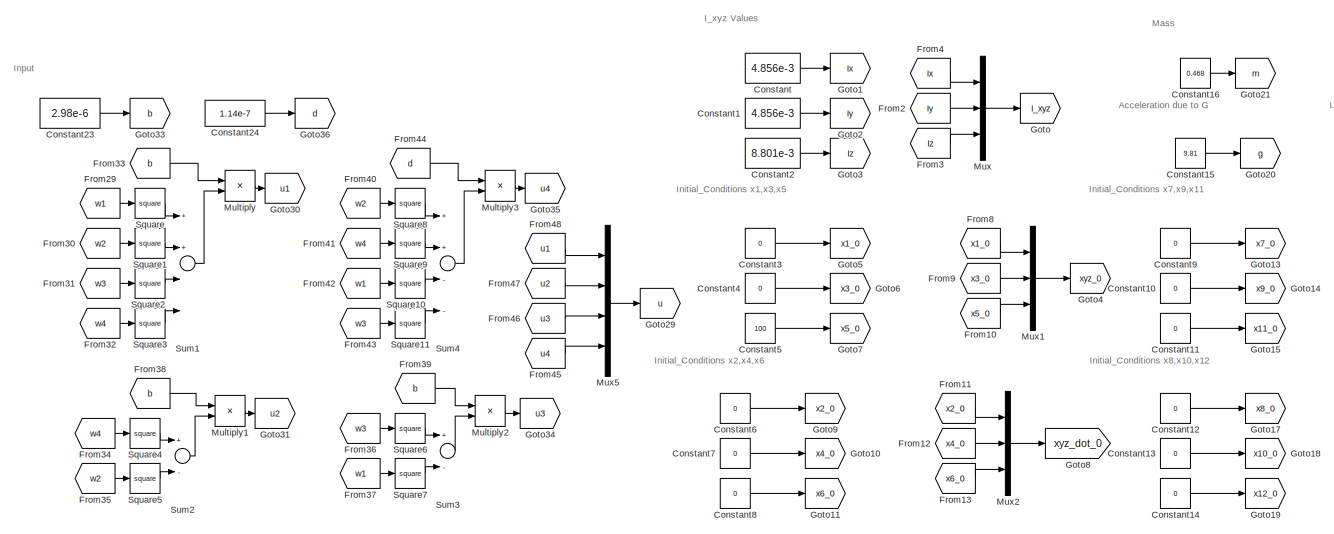
[diagram: root canvas - part 1/3, top center region]
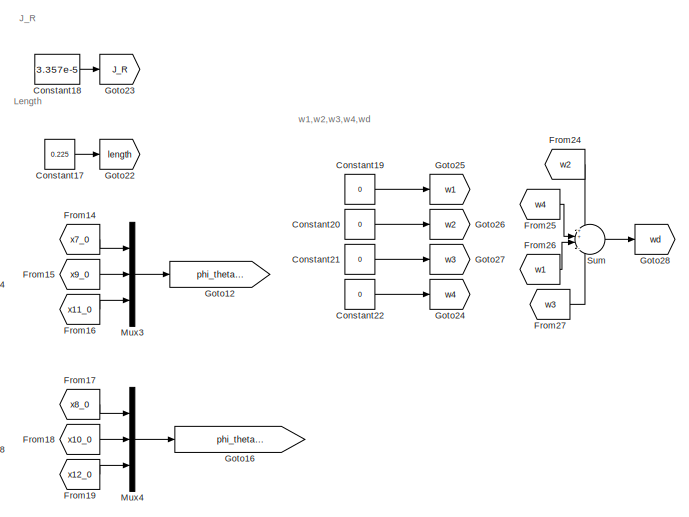
[diagram: root canvas - part 2/3, top right region]
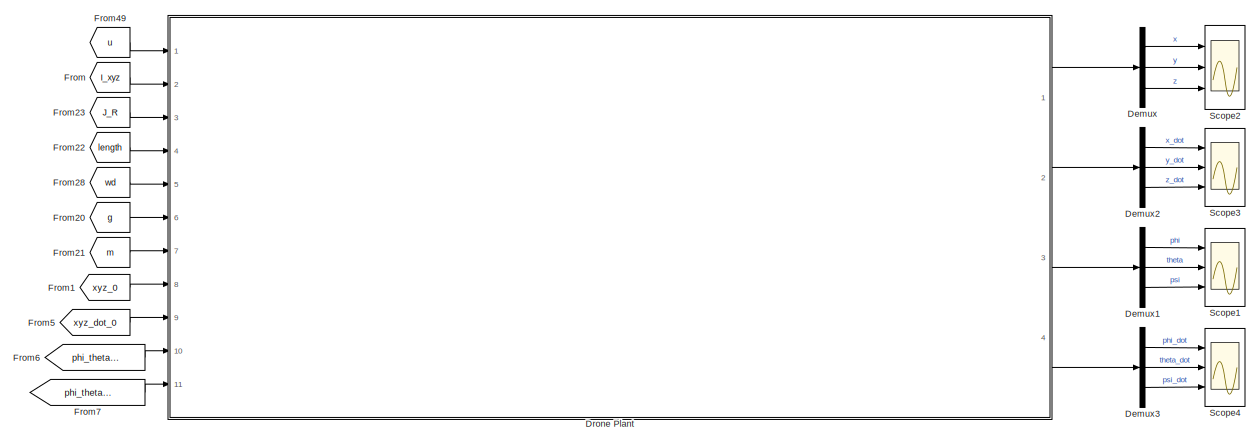
[diagram: root canvas - part 3/3, bottom center region]
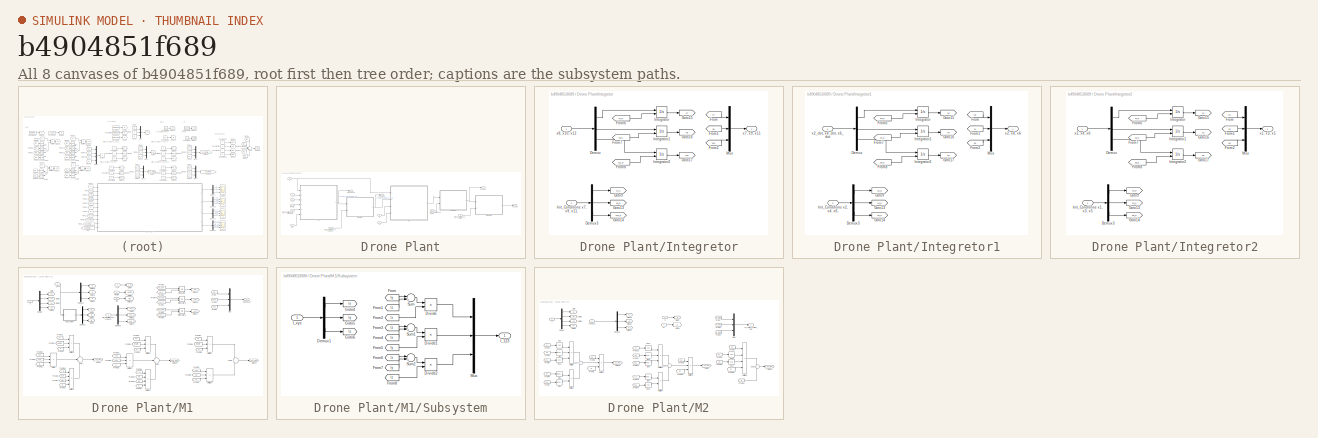
[diagram: thumbnail index - all 8 canvases of the model, root first then tree order]
MODEL slx_b4904851f689
KIND model
CONFIG AbsTol = auto
CONFIG EnableMultiTasking = off
CONFIG FixedStep = auto
CONFIG MaxStep = auto
CONFIG MinStep = auto
CONFIG RelTol = 1e-3
CONFIG SampleTimeConstraint = Unconstrained
CONFIG Solver = VariableStepAuto
CONFIG SolverName = VariableStepAuto
CONFIG StartTime = 0.0
CONFIG StopTime = 10.0
BLOCK [Constant] Constant
  Value = 4.856e-3
BLOCK [Constant] Constant1
  Value = 4.856e-3
BLOCK [Constant] Constant10
  Value = 0
BLOCK [Constant] Constant11
  Value = 0
BLOCK [Constant] Constant12
  Value = 0
BLOCK [Constant] Constant13
  Value = 0
BLOCK [Constant] Constant14
  Value = 0
BLOCK [Constant] Constant15
  Value = 9.81
BLOCK [Constant] Constant16
  Value = 0.468
BLOCK [Constant] Constant17
  Value = 0.225
BLOCK [Constant] Constant18
  Value = 3.357e-5
BLOCK [Constant] Constant19
  Value = 0
BLOCK [Constant] Constant2
  Value = 8.801e-3
BLOCK [Constant] Constant20
  Value = 0
BLOCK [Constant] Constant21
  Value = 0
BLOCK [Constant] Constant22
  Value = 0
BLOCK [Constant] Constant23
  Value = 2.98e-6
BLOCK [Constant] Constant24
  Value = 1.14e-7
BLOCK [Constant] Constant3
  Value = 0
BLOCK [Constant] Constant4
  Value = 0
BLOCK [Constant] Constant5
  Value = 100
BLOCK [Constant] Constant6
  Value = 0
BLOCK [Constant] Constant7
  Value = 0
BLOCK [Constant] Constant8
  Value = 0
BLOCK [Constant] Constant9
  Value = 0
BLOCK [Demux] Demux
  DisplayOption = bar
  Outputs = 3
  Ports = [1, 3]
BLOCK [Demux] Demux1
  DisplayOption = bar
  Outputs = 3
  Ports = [1, 3]
BLOCK [Demux] Demux2
  DisplayOption = bar
  Outputs = 3
  Ports = [1, 3]
BLOCK [Demux] Demux3
  DisplayOption = bar
  Outputs = 3
  Ports = [1, 3]
BLOCK [SubSystem] Drone Plant
  Ports = [11, 4]
  RequestExecContextInheritance = off
BLOCK [Inport] Drone Plant/I_xyz
  IconDisplay = Port number
  Port = 2
BLOCK [Inport] Drone Plant/Init_Conditions x1, x3, x5
  IconDisplay = Port number
  Port = 8
BLOCK [Inport] Drone Plant/Init_Conditions x2, x4, x6,
  IconDisplay = Port number
  Port = 9
BLOCK [Inport] Drone Plant/Init_Conditions x7, x9, x11,
  IconDisplay = Port number
  Port = 10
BLOCK [Inport] Drone Plant/Init_Conditions x8, x10, x12,
  IconDisplay = Port number
  Port = 11
BLOCK [SubSystem] Drone Plant/Integretor
  Ports = [2, 1]
  RequestExecContextInheritance = off
BLOCK [Demux] Drone Plant/Integretor/Demux
  DisplayOption = bar
  Outputs = 3
  Ports = [1, 3]
BLOCK [Demux] Drone Plant/Integretor/Demux3
  DisplayOption = bar
  Outputs = 3
  Ports = [1, 3]
BLOCK [From] Drone Plant/Integretor/From
  GotoTag = x7
BLOCK [From] Drone Plant/Integretor/From1
  GotoTag = x9
BLOCK [From] Drone Plant/Integretor/From2
  GotoTag = x11
BLOCK [From] Drone Plant/Integretor/From6
  GotoTag = x7_0
BLOCK [From] Drone Plant/Integretor/From7
  GotoTag = x9_0
BLOCK [From] Drone Plant/Integretor/From8
  GotoTag = x11_0
BLOCK [Goto] Drone Plant/Integretor/Goto13
  GotoTag = x9_0
BLOCK [Goto] Drone Plant/Integretor/Goto14
  GotoTag = x11_0
BLOCK [Goto] Drone Plant/Integretor/Goto15
  GotoTag = x7
BLOCK [Goto] Drone Plant/Integretor/Goto16
  GotoTag = x9
BLOCK [Goto] Drone Plant/Integretor/Goto17
  GotoTag = x11
BLOCK [Goto] Drone Plant/Integretor/Goto9
  GotoTag = x7_0
BLOCK [Inport] Drone Plant/Integretor/Init_Conditions x7, x9, x11,
  IconDisplay = Port number
  Port = 2
BLOCK [Integrator] Drone Plant/Integretor/Integrator
  InitialConditionSource = external
  Ports = [2, 1]
BLOCK [Integrator] Drone Plant/Integretor/Integrator1
  InitialConditionSource = external
  Ports = [2, 1]
BLOCK [Integrator] Drone Plant/Integretor/Integrator2
  InitialConditionSource = external
  Ports = [2, 1]
BLOCK [Mux] Drone Plant/Integretor/Mux
  DisplayOption = bar
  Inputs = 3
  Ports = [3, 1]
BLOCK [Outport] Drone Plant/Integretor/x7, x9, x11
  IconDisplay = Port number
BLOCK [Inport] Drone Plant/Integretor/x8, x10, x12
  IconDisplay = Port number
BLOCK [SubSystem] Drone Plant/Integretor1
  Ports = [2, 1]
  RequestExecContextInheritance = off
BLOCK [Demux] Drone Plant/Integretor1/Demux
  DisplayOption = bar
  Outputs = 3
  Ports = [1, 3]
BLOCK [Demux] Drone Plant/Integretor1/Demux3
  DisplayOption = bar
  Outputs = 3
  Ports = [1, 3]
BLOCK [From] Drone Plant/Integretor1/From
  GotoTag = x2
BLOCK [From] Drone Plant/Integretor1/From1
  GotoTag = x4
BLOCK [From] Drone Plant/Integretor1/From2
  GotoTag = x6
BLOCK [From] Drone Plant/Integretor1/From6
  GotoTag = x2_0
BLOCK [From] Drone Plant/Integretor1/From7
  GotoTag = x4_0
BLOCK [From] Drone Plant/Integretor1/From8
  GotoTag = x6_0
BLOCK [Goto] Drone Plant/Integretor1/Goto13
  GotoTag = x4_0
BLOCK [Goto] Drone Plant/Integretor1/Goto14
  GotoTag = x6_0
BLOCK [Goto] Drone Plant/Integretor1/Goto15
  GotoTag = x2
BLOCK [Goto] Drone Plant/Integretor1/Goto16
  GotoTag = x4
BLOCK [Goto] Drone Plant/Integretor1/Goto17
  GotoTag = x6
BLOCK [Goto] Drone Plant/Integretor1/Goto9
  GotoTag = x2_0
BLOCK [Inport] Drone Plant/Integretor1/Init_Conditions x2, x4, x6,
  IconDisplay = Port number
  Port = 2
BLOCK [Integrator] Drone Plant/Integretor1/Integrator
  InitialConditionSource = external
  Ports = [2, 1]
BLOCK [Integrator] Drone Plant/Integretor1/Integrator1
  InitialConditionSource = external
  Ports = [2, 1]
BLOCK [Integrator] Drone Plant/Integretor1/Integrator2
  InitialConditionSource = external
  Ports = [2, 1]
BLOCK [Mux] Drone Plant/Integretor1/Mux
  DisplayOption = bar
  Inputs = 3
  Ports = [3, 1]
BLOCK [Outport] Drone Plant/Integretor1/x2, x4, x6
  IconDisplay = Port number
BLOCK [Inport] Drone Plant/Integretor1/x2_dot, x4_dot, x6_dot
  IconDisplay = Port number
BLOCK [SubSystem] Drone Plant/Integretor2
  Ports = [2, 1]
  RequestExecContextInheritance = off
BLOCK [Demux] Drone Plant/Integretor2/Demux
  DisplayOption = bar
  Outputs = 3
  Ports = [1, 3]
BLOCK [Demux] Drone Plant/Integretor2/Demux3
  DisplayOption = bar
  Outputs = 3
  Ports = [1, 3]
BLOCK [From] Drone Plant/Integretor2/From
  GotoTag = x1
BLOCK [From] Drone Plant/Integretor2/From1
  GotoTag = x3
BLOCK [From] Drone Plant/Integretor2/From2
  GotoTag = x5
BLOCK [From] Drone Plant/Integretor2/From6
  GotoTag = x1_0
BLOCK [From] Drone Plant/Integretor2/From7
  GotoTag = x3_0
BLOCK [From] Drone Plant/Integretor2/From8
  GotoTag = x5_0
BLOCK [Goto] Drone Plant/Integretor2/Goto13
  GotoTag = x3_0
BLOCK [Goto] Drone Plant/Integretor2/Goto14
  GotoTag = x5_0
BLOCK [Goto] Drone Plant/Integretor2/Goto15
  GotoTag = x1
BLOCK [Goto] Drone Plant/Integretor2/Goto16
  GotoTag = x3
BLOCK [Goto] Drone Plant/Integretor2/Goto17
  GotoTag = x5
BLOCK [Goto] Drone Plant/Integretor2/Goto9
  GotoTag = x1_0
BLOCK [Inport] Drone Plant/Integretor2/Init_Conditions x1, x3, x5
  IconDisplay = Port number
  Port = 2
BLOCK [Integrator] Drone Plant/Integretor2/Integrator
  InitialConditionSource = external
  Ports = [2, 1]
BLOCK [Integrator] Drone Plant/Integretor2/Integrator1
  InitialConditionSource = external
  Ports = [2, 1]
BLOCK [Integrator] Drone Plant/Integretor2/Integrator2
  InitialConditionSource = external
  Ports = [2, 1]
BLOCK [Mux] Drone Plant/Integretor2/Mux
  DisplayOption = bar
  Inputs = 3
  Ports = [3, 1]
BLOCK [Outport] Drone Plant/Integretor2/x1, x3, x5
  IconDisplay = Port number
BLOCK [Inport] Drone Plant/Integretor2/x2, x4, x6
  IconDisplay = Port number
BLOCK [Inport] Drone Plant/J_R
  IconDisplay = Port number
  Port = 3
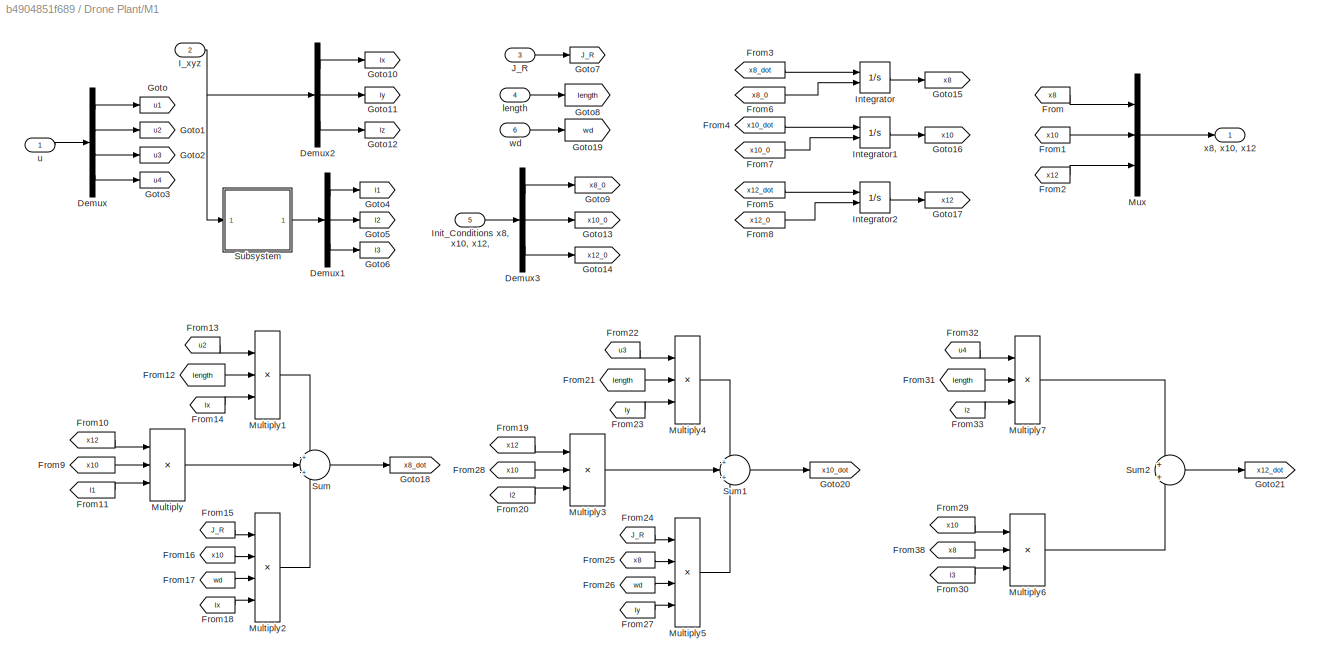
BLOCK [SubSystem] Drone Plant/M1
  Ports = [6, 1]
  RequestExecContextInheritance = off
BLOCK [Demux] Drone Plant/M1/Demux
  DisplayOption = bar
  Ports = [1, 4]
BLOCK [Demux] Drone Plant/M1/Demux1
  DisplayOption = bar
  Outputs = 3
  Ports = [1, 3]
BLOCK [Demux] Drone Plant/M1/Demux2
  DisplayOption = bar
  Outputs = 3
  Ports = [1, 3]
BLOCK [Demux] Drone Plant/M1/Demux3
  DisplayOption = bar
  Outputs = 3
  Ports = [1, 3]
BLOCK [From] Drone Plant/M1/From
  GotoTag = x8
BLOCK [From] Drone Plant/M1/From1
  GotoTag = x10
BLOCK [From] Drone Plant/M1/From10
  GotoTag = x12
BLOCK [From] Drone Plant/M1/From11
  GotoTag = I1
BLOCK [From] Drone Plant/M1/From12
  GotoTag = length
BLOCK [From] Drone Plant/M1/From13
  GotoTag = u2
BLOCK [From] Drone Plant/M1/From14
  GotoTag = Ix
BLOCK [From] Drone Plant/M1/From15
  GotoTag = J_R
BLOCK [From] Drone Plant/M1/From16
  GotoTag = x10
BLOCK [From] Drone Plant/M1/From17
  GotoTag = wd
BLOCK [From] Drone Plant/M1/From18
  GotoTag = Ix
BLOCK [From] Drone Plant/M1/From19
  GotoTag = x12
BLOCK [From] Drone Plant/M1/From2
  GotoTag = x12
BLOCK [From] Drone Plant/M1/From20
  GotoTag = I2
BLOCK [From] Drone Plant/M1/From21
  GotoTag = length
BLOCK [From] Drone Plant/M1/From22
  GotoTag = u3
BLOCK [From] Drone Plant/M1/From23
  GotoTag = Iy
BLOCK [From] Drone Plant/M1/From24
  GotoTag = J_R
BLOCK [From] Drone Plant/M1/From25
  GotoTag = x8
BLOCK [From] Drone Plant/M1/From26
  GotoTag = wd
BLOCK [From] Drone Plant/M1/From27
  GotoTag = Iy
BLOCK [From] Drone Plant/M1/From28
  GotoTag = x10
BLOCK [From] Drone Plant/M1/From29
  GotoTag = x10
BLOCK [From] Drone Plant/M1/From3
  GotoTag = x8_dot
BLOCK [From] Drone Plant/M1/From30
  GotoTag = I3
BLOCK [From] Drone Plant/M1/From31
  GotoTag = length
BLOCK [From] Drone Plant/M1/From32
  GotoTag = u4
BLOCK [From] Drone Plant/M1/From33
  GotoTag = Iz
BLOCK [From] Drone Plant/M1/From38
  GotoTag = x8
BLOCK [From] Drone Plant/M1/From4
  GotoTag = x10_dot
BLOCK [From] Drone Plant/M1/From5
  GotoTag = x12_dot
BLOCK [From] Drone Plant/M1/From6
  GotoTag = x8_0
BLOCK [From] Drone Plant/M1/From7
  GotoTag = x10_0
BLOCK [From] Drone Plant/M1/From8
  GotoTag = x12_0
BLOCK [From] Drone Plant/M1/From9
  GotoTag = x10
BLOCK [Goto] Drone Plant/M1/Goto
  GotoTag = u1
BLOCK [Goto] Drone Plant/M1/Goto1
  GotoTag = u2
BLOCK [Goto] Drone Plant/M1/Goto10
  GotoTag = Ix
BLOCK [Goto] Drone Plant/M1/Goto11
  GotoTag = Iy
BLOCK [Goto] Drone Plant/M1/Goto12
  GotoTag = Iz
BLOCK [Goto] Drone Plant/M1/Goto13
  GotoTag = x10_0
BLOCK [Goto] Drone Plant/M1/Goto14
  GotoTag = x12_0
BLOCK [Goto] Drone Plant/M1/Goto15
  GotoTag = x8
BLOCK [Goto] Drone Plant/M1/Goto16
  GotoTag = x10
BLOCK [Goto] Drone Plant/M1/Goto17
  GotoTag = x12
BLOCK [Goto] Drone Plant/M1/Goto18
  GotoTag = x8_dot
BLOCK [Goto] Drone Plant/M1/Goto19
  GotoTag = wd
BLOCK [Goto] Drone Plant/M1/Goto2
  GotoTag = u3
BLOCK [Goto] Drone Plant/M1/Goto20
  GotoTag = x10_dot
BLOCK [Goto] Drone Plant/M1/Goto21
  GotoTag = x12_dot
BLOCK [Goto] Drone Plant/M1/Goto3
  GotoTag = u4
BLOCK [Goto] Drone Plant/M1/Goto4
  GotoTag = I1
BLOCK [Goto] Drone Plant/M1/Goto5
  GotoTag = I2
BLOCK [Goto] Drone Plant/M1/Goto6
  GotoTag = I3
BLOCK [Goto] Drone Plant/M1/Goto7
  GotoTag = J_R
BLOCK [Goto] Drone Plant/M1/Goto8
  GotoTag = length
BLOCK [Goto] Drone Plant/M1/Goto9
  GotoTag = x8_0
BLOCK [Inport] Drone Plant/M1/I_xyz
  IconDisplay = Port number
  Port = 2
BLOCK [Inport] Drone Plant/M1/Init_Conditions x8, x10, x12,
  IconDisplay = Port number
  Port = 5
BLOCK [Integrator] Drone Plant/M1/Integrator
  InitialConditionSource = external
  Ports = [2, 1]
BLOCK [Integrator] Drone Plant/M1/Integrator1
  InitialConditionSource = external
  Ports = [2, 1]
BLOCK [Integrator] Drone Plant/M1/Integrator2
  InitialConditionSource = external
  Ports = [2, 1]
BLOCK [Inport] Drone Plant/M1/J_R
  IconDisplay = Port number
  Port = 3
BLOCK [Product] Drone Plant/M1/Multiply
  InputSameDT = off
  Inputs = 3
  OutDataTypeStr = Inherit: Inherit via internal rule
  Ports = [3, 1]
  RndMeth = Floor
  SaturateOnIntegerOverflow = off
BLOCK [Product] Drone Plant/M1/Multiply1
  InputSameDT = off
  Inputs = **/
  OutDataTypeStr = Inherit: Inherit via internal rule
  Ports = [3, 1]
  RndMeth = Floor
  SaturateOnIntegerOverflow = off
BLOCK [Product] Drone Plant/M1/Multiply2
  InputSameDT = off
  Inputs = ***/
  OutDataTypeStr = Inherit: Inherit via internal rule
  Ports = [4, 1]
  RndMeth = Floor
  SaturateOnIntegerOverflow = off
BLOCK [Product] Drone Plant/M1/Multiply3
  InputSameDT = off
  Inputs = 3
  OutDataTypeStr = Inherit: Inherit via internal rule
  Ports = [3, 1]
  RndMeth = Floor
  SaturateOnIntegerOverflow = off
BLOCK [Product] Drone Plant/M1/Multiply4
  InputSameDT = off
  Inputs = **/
  OutDataTypeStr = Inherit: Inherit via internal rule
  Ports = [3, 1]
  RndMeth = Floor
  SaturateOnIntegerOverflow = off
BLOCK [Product] Drone Plant/M1/Multiply5
  InputSameDT = off
  Inputs = ***/
  OutDataTypeStr = Inherit: Inherit via internal rule
  Ports = [4, 1]
  RndMeth = Floor
  SaturateOnIntegerOverflow = off
BLOCK [Product] Drone Plant/M1/Multiply6
  InputSameDT = off
  Inputs = 3
  OutDataTypeStr = Inherit: Inherit via internal rule
  Ports = [3, 1]
  RndMeth = Floor
  SaturateOnIntegerOverflow = off
BLOCK [Product] Drone Plant/M1/Multiply7
  InputSameDT = off
  Inputs = **/
  OutDataTypeStr = Inherit: Inherit via internal rule
  Ports = [3, 1]
  RndMeth = Floor
  SaturateOnIntegerOverflow = off
BLOCK [Mux] Drone Plant/M1/Mux
  DisplayOption = bar
  Inputs = 3
  Ports = [3, 1]
BLOCK [SubSystem] Drone Plant/M1/Subsystem
  Ports = [1, 1]
  RequestExecContextInheritance = off
BLOCK [Demux] Drone Plant/M1/Subsystem/Demux1
  DisplayOption = bar
  Outputs = 3
  Ports = [1, 3]
BLOCK [Product] Drone Plant/M1/Subsystem/Divide
  InputSameDT = off
  Inputs = */
  OutDataTypeStr = Inherit: Inherit via internal rule
  Ports = [2, 1]
  RndMeth = Floor
  SaturateOnIntegerOverflow = off
BLOCK [Product] Drone Plant/M1/Subsystem/Divide1
  InputSameDT = off
  Inputs = */
  OutDataTypeStr = Inherit: Inherit via internal rule
  Ports = [2, 1]
  RndMeth = Floor
  SaturateOnIntegerOverflow = off
BLOCK [Product] Drone Plant/M1/Subsystem/Divide2
  InputSameDT = off
  Inputs = */
  OutDataTypeStr = Inherit: Inherit via internal rule
  Ports = [2, 1]
  RndMeth = Floor
  SaturateOnIntegerOverflow = off
BLOCK [From] Drone Plant/M1/Subsystem/From
  GotoTag = Iy
BLOCK [From] Drone Plant/M1/Subsystem/From1
  GotoTag = Iz
BLOCK [From] Drone Plant/M1/Subsystem/From2
  GotoTag = Ix
BLOCK [From] Drone Plant/M1/Subsystem/From3
  GotoTag = Iz
BLOCK [From] Drone Plant/M1/Subsystem/From4
  GotoTag = Ix
BLOCK [From] Drone Plant/M1/Subsystem/From5
  GotoTag = Iy
BLOCK [From] Drone Plant/M1/Subsystem/From6
  GotoTag = Ix
BLOCK [From] Drone Plant/M1/Subsystem/From7
  GotoTag = Iy
BLOCK [From] Drone Plant/M1/Subsystem/From8
  GotoTag = Iz
BLOCK [Goto] Drone Plant/M1/Subsystem/Goto4
  GotoTag = Ix
BLOCK [Goto] Drone Plant/M1/Subsystem/Goto5
  GotoTag = Iy
BLOCK [Goto] Drone Plant/M1/Subsystem/Goto6
  GotoTag = Iz
BLOCK [Outport] Drone Plant/M1/Subsystem/I_123
  IconDisplay = Port number
BLOCK [Inport] Drone Plant/M1/Subsystem/I_xyz
  IconDisplay = Port number
BLOCK [Mux] Drone Plant/M1/Subsystem/Mux
  DisplayOption = bar
  Inputs = 3
  Ports = [3, 1]
BLOCK [Sum] Drone Plant/M1/Subsystem/Sum
  IconShape = round
  InputSameDT = off
  Inputs = |+-
  OutDataTypeStr = Inherit: Inherit via internal rule
  Ports = [2, 1]
  SaturateOnIntegerOverflow = off
BLOCK [Sum] Drone Plant/M1/Subsystem/Sum1
  IconShape = round
  InputSameDT = off
  Inputs = |+-
  OutDataTypeStr = Inherit: Inherit via internal rule
  Ports = [2, 1]
  SaturateOnIntegerOverflow = off
BLOCK [Sum] Drone Plant/M1/Subsystem/Sum2
  IconShape = round
  InputSameDT = off
  Inputs = |+-
  OutDataTypeStr = Inherit: Inherit via internal rule
  Ports = [2, 1]
  SaturateOnIntegerOverflow = off
BLOCK [Sum] Drone Plant/M1/Sum
  IconShape = round
  InputSameDT = off
  Inputs = +|+|-
  OutDataTypeStr = Inherit: Inherit via internal rule
  Ports = [3, 1]
  SaturateOnIntegerOverflow = off
BLOCK [Sum] Drone Plant/M1/Sum1
  IconShape = round
  InputSameDT = off
  Inputs = +|+|+
  OutDataTypeStr = Inherit: Inherit via internal rule
  Ports = [3, 1]
  SaturateOnIntegerOverflow = off
BLOCK [Sum] Drone Plant/M1/Sum2
  IconShape = round
  InputSameDT = off
  Inputs = +|+
  OutDataTypeStr = Inherit: Inherit via internal rule
  Ports = [2, 1]
  SaturateOnIntegerOverflow = off
BLOCK [Inport] Drone Plant/M1/length
  IconDisplay = Port number
  Port = 4
BLOCK [Inport] Drone Plant/M1/u
  IconDisplay = Port number
BLOCK [Inport] Drone Plant/M1/wd
  IconDisplay = Port number
  Port = 6
BLOCK [Outport] Drone Plant/M1/x8, x10, x12
  IconDisplay = Port number
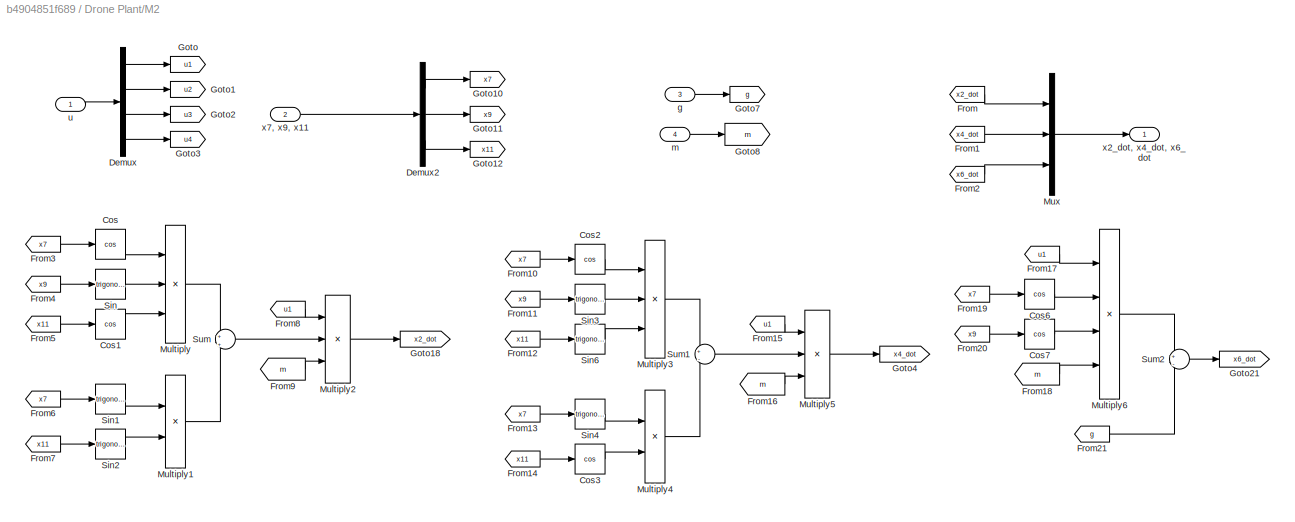
BLOCK [SubSystem] Drone Plant/M2
  Ports = [4, 1]
  RequestExecContextInheritance = off
BLOCK [Trigonometry] Drone Plant/M2/Cos
  Operator = cos
  Ports = [1, 1]
BLOCK [Trigonometry] Drone Plant/M2/Cos1
  Operator = cos
  Ports = [1, 1]
BLOCK [Trigonometry] Drone Plant/M2/Cos2
  Operator = cos
  Ports = [1, 1]
BLOCK [Trigonometry] Drone Plant/M2/Cos3
  Operator = cos
  Ports = [1, 1]
BLOCK [Trigonometry] Drone Plant/M2/Cos6
  Operator = cos
  Ports = [1, 1]
BLOCK [Trigonometry] Drone Plant/M2/Cos7
  Operator = cos
  Ports = [1, 1]
BLOCK [Demux] Drone Plant/M2/Demux
  DisplayOption = bar
  Ports = [1, 4]
BLOCK [Demux] Drone Plant/M2/Demux2
  DisplayOption = bar
  Outputs = 3
  Ports = [1, 3]
BLOCK [From] Drone Plant/M2/From
  GotoTag = x2_dot
BLOCK [From] Drone Plant/M2/From1
  GotoTag = x4_dot
BLOCK [From] Drone Plant/M2/From10
  GotoTag = x7
BLOCK [From] Drone Plant/M2/From11
  GotoTag = x9
BLOCK [From] Drone Plant/M2/From12
  GotoTag = x11
BLOCK [From] Drone Plant/M2/From13
  GotoTag = x7
BLOCK [From] Drone Plant/M2/From14
  GotoTag = x11
BLOCK [From] Drone Plant/M2/From15
  GotoTag = u1
BLOCK [From] Drone Plant/M2/From16
  GotoTag = m
BLOCK [From] Drone Plant/M2/From17
  GotoTag = u1
BLOCK [From] Drone Plant/M2/From18
  GotoTag = m
BLOCK [From] Drone Plant/M2/From19
  GotoTag = x7
BLOCK [From] Drone Plant/M2/From2
  GotoTag = x6_dot
BLOCK [From] Drone Plant/M2/From20
  GotoTag = x9
BLOCK [From] Drone Plant/M2/From21
  GotoTag = g
BLOCK [From] Drone Plant/M2/From3
  GotoTag = x7
BLOCK [From] Drone Plant/M2/From4
  GotoTag = x9
BLOCK [From] Drone Plant/M2/From5
  GotoTag = x11
BLOCK [From] Drone Plant/M2/From6
  GotoTag = x7
BLOCK [From] Drone Plant/M2/From7
  GotoTag = x11
BLOCK [From] Drone Plant/M2/From8
  GotoTag = u1
BLOCK [From] Drone Plant/M2/From9
  GotoTag = m
BLOCK [Goto] Drone Plant/M2/Goto
  GotoTag = u1
BLOCK [Goto] Drone Plant/M2/Goto1
  GotoTag = u2
BLOCK [Goto] Drone Plant/M2/Goto10
  GotoTag = x7
BLOCK [Goto] Drone Plant/M2/Goto11
  GotoTag = x9
BLOCK [Goto] Drone Plant/M2/Goto12
  GotoTag = x11
BLOCK [Goto] Drone Plant/M2/Goto18
  GotoTag = x2_dot
BLOCK [Goto] Drone Plant/M2/Goto2
  GotoTag = u3
BLOCK [Goto] Drone Plant/M2/Goto21
  GotoTag = x6_dot
BLOCK [Goto] Drone Plant/M2/Goto3
  GotoTag = u4
BLOCK [Goto] Drone Plant/M2/Goto4
  GotoTag = x4_dot
BLOCK [Goto] Drone Plant/M2/Goto7
  GotoTag = g
BLOCK [Goto] Drone Plant/M2/Goto8
  GotoTag = m
BLOCK [Product] Drone Plant/M2/Multiply
  InputSameDT = off
  Inputs = 3
  OutDataTypeStr = Inherit: Inherit via internal rule
  Ports = [3, 1]
  RndMeth = Floor
  SaturateOnIntegerOverflow = off
BLOCK [Product] Drone Plant/M2/Multiply1
  InputSameDT = off
  OutDataTypeStr = Inherit: Inherit via internal rule
  Ports = [2, 1]
  RndMeth = Floor
  SaturateOnIntegerOverflow = off
BLOCK [Product] Drone Plant/M2/Multiply2
  InputSameDT = off
  Inputs = **/
  OutDataTypeStr = Inherit: Inherit via internal rule
  Ports = [3, 1]
  RndMeth = Floor
  SaturateOnIntegerOverflow = off
BLOCK [Product] Drone Plant/M2/Multiply3
  InputSameDT = off
  Inputs = 3
  OutDataTypeStr = Inherit: Inherit via internal rule
  Ports = [3, 1]
  RndMeth = Floor
  SaturateOnIntegerOverflow = off
BLOCK [Product] Drone Plant/M2/Multiply4
  InputSameDT = off
  OutDataTypeStr = Inherit: Inherit via internal rule
  Ports = [2, 1]
  RndMeth = Floor
  SaturateOnIntegerOverflow = off
BLOCK [Product] Drone Plant/M2/Multiply5
  InputSameDT = off
  Inputs = **/
  OutDataTypeStr = Inherit: Inherit via internal rule
  Ports = [3, 1]
  RndMeth = Floor
  SaturateOnIntegerOverflow = off
BLOCK [Product] Drone Plant/M2/Multiply6
  InputSameDT = off
  Inputs = ***/
  OutDataTypeStr = Inherit: Inherit via internal rule
  Ports = [4, 1]
  RndMeth = Floor
  SaturateOnIntegerOverflow = off
BLOCK [Mux] Drone Plant/M2/Mux
  DisplayOption = bar
  Inputs = 3
  Ports = [3, 1]
BLOCK [Trigonometry] Drone Plant/M2/Sin
  Ports = [1, 1]
BLOCK [Trigonometry] Drone Plant/M2/Sin1
  Ports = [1, 1]
BLOCK [Trigonometry] Drone Plant/M2/Sin2
  Ports = [1, 1]
BLOCK [Trigonometry] Drone Plant/M2/Sin3
  Ports = [1, 1]
BLOCK [Trigonometry] Drone Plant/M2/Sin4
  Ports = [1, 1]
BLOCK [Trigonometry] Drone Plant/M2/Sin6
  Ports = [1, 1]
BLOCK [Sum] Drone Plant/M2/Sum
  IconShape = round
  InputSameDT = off
  Inputs = +|+
  OutDataTypeStr = Inherit: Inherit via internal rule
  Ports = [2, 1]
  SaturateOnIntegerOverflow = off
BLOCK [Sum] Drone Plant/M2/Sum1
  IconShape = round
  InputSameDT = off
  Inputs = +|-
  OutDataTypeStr = Inherit: Inherit via internal rule
  Ports = [2, 1]
  SaturateOnIntegerOverflow = off
BLOCK [Sum] Drone Plant/M2/Sum2
  IconShape = round
  InputSameDT = off
  Inputs = +|-
  OutDataTypeStr = Inherit: Inherit via internal rule
  Ports = [2, 1]
  SaturateOnIntegerOverflow = off
BLOCK [Inport] Drone Plant/M2/g
  IconDisplay = Port number
  Port = 3
BLOCK [Inport] Drone Plant/M2/m
  IconDisplay = Port number
  Port = 4
BLOCK [Inport] Drone Plant/M2/u
  IconDisplay = Port number
BLOCK [Outport] Drone Plant/M2/x2_dot, x4_dot, x6_dot
  IconDisplay = Port number
BLOCK [Inport] Drone Plant/M2/x7, x9, x11
  IconDisplay = Port number
  Port = 2
BLOCK [Inport] Drone Plant/g
  IconDisplay = Port number
  Port = 6
BLOCK [Inport] Drone Plant/length
  IconDisplay = Port number
  Port = 4
BLOCK [Inport] Drone Plant/m
  IconDisplay = Port number
  Port = 7
BLOCK [Inport] Drone Plant/u
  IconDisplay = Port number
BLOCK [Inport] Drone Plant/wd
  IconDisplay = Port number
  Port = 5
BLOCK [Outport] Drone Plant/x1, x3, x5
  IconDisplay = Port number
BLOCK [Outport] Drone Plant/x2, x4, x6
  IconDisplay = Port number
  Port = 2
BLOCK [Outport] Drone Plant/x7, x9, x11
  IconDisplay = Port number
  Port = 3
BLOCK [Outport] Drone Plant/x8, x10, x12
  IconDisplay = Port number
  Port = 4
BLOCK [From] From
  GotoTag = I_xyz
BLOCK [From] From1
  GotoTag = xyz_0
BLOCK [From] From10
  GotoTag = x5_0
BLOCK [From] From11
  GotoTag = x2_0
BLOCK [From] From12
  GotoTag = x4_0
BLOCK [From] From13
  GotoTag = x6_0
BLOCK [From] From14
  GotoTag = x7_0
BLOCK [From] From15
  GotoTag = x9_0
BLOCK [From] From16
  GotoTag = x11_0
BLOCK [From] From17
  GotoTag = x8_0
BLOCK [From] From18
  GotoTag = x10_0
BLOCK [From] From19
  GotoTag = x12_0
BLOCK [From] From2
  GotoTag = Iy
BLOCK [From] From20
  GotoTag = g
BLOCK [From] From21
  GotoTag = m
BLOCK [From] From22
  GotoTag = length
BLOCK [From] From23
  GotoTag = J_R
BLOCK [From] From24
  GotoTag = w2
BLOCK [From] From25
  GotoTag = w4
BLOCK [From] From26
  GotoTag = w1
BLOCK [From] From27
  GotoTag = w3
BLOCK [From] From28
  GotoTag = wd
BLOCK [From] From29
  GotoTag = w1
BLOCK [From] From3
  GotoTag = Iz
BLOCK [From] From30
  GotoTag = w2
BLOCK [From] From31
  GotoTag = w3
BLOCK [From] From32
  GotoTag = w4
BLOCK [From] From33
  GotoTag = b
BLOCK [From] From34
  GotoTag = w4
BLOCK [From] From35
  GotoTag = w2
BLOCK [From] From36
  GotoTag = w3
BLOCK [From] From37
  GotoTag = w1
BLOCK [From] From38
  GotoTag = b
BLOCK [From] From39
  GotoTag = b
BLOCK [From] From4
  GotoTag = Ix
BLOCK [From] From40
  GotoTag = w2
BLOCK [From] From41
  GotoTag = w4
BLOCK [From] From42
  GotoTag = w1
BLOCK [From] From43
  GotoTag = w3
BLOCK [From] From44
  GotoTag = d
BLOCK [From] From45
  GotoTag = u4
BLOCK [From] From46
  GotoTag = u3
BLOCK [From] From47
  GotoTag = u2
BLOCK [From] From48
  GotoTag = u1
BLOCK [From] From49
  GotoTag = u
BLOCK [From] From5
  GotoTag = xyz_dot_0
BLOCK [From] From6
  GotoTag = phi_theta_psi_0
BLOCK [From] From7
  GotoTag = phi_theta_psi_dot_0
BLOCK [From] From8
  GotoTag = x1_0
BLOCK [From] From9
  GotoTag = x3_0
BLOCK [Goto] Goto
  GotoTag = I_xyz
BLOCK [Goto] Goto1
  GotoTag = Ix
BLOCK [Goto] Goto10
  GotoTag = x4_0
BLOCK [Goto] Goto11
  GotoTag = x6_0
BLOCK [Goto] Goto12
  GotoTag = phi_theta_psi_0
BLOCK [Goto] Goto13
  GotoTag = x7_0
BLOCK [Goto] Goto14
  GotoTag = x9_0
BLOCK [Goto] Goto15
  GotoTag = x11_0
BLOCK [Goto] Goto16
  GotoTag = phi_theta_psi_dot_0
BLOCK [Goto] Goto17
  GotoTag = x8_0
BLOCK [Goto] Goto18
  GotoTag = x10_0
BLOCK [Goto] Goto19
  GotoTag = x12_0
BLOCK [Goto] Goto2
  GotoTag = Iy
BLOCK [Goto] Goto20
  GotoTag = g
BLOCK [Goto] Goto21
  GotoTag = m
BLOCK [Goto] Goto22
  GotoTag = length
BLOCK [Goto] Goto23
  GotoTag = J_R
BLOCK [Goto] Goto24
  GotoTag = w4
BLOCK [Goto] Goto25
  GotoTag = w1
BLOCK [Goto] Goto26
  GotoTag = w2
BLOCK [Goto] Goto27
  GotoTag = w3
BLOCK [Goto] Goto28
  GotoTag = wd
BLOCK [Goto] Goto29
  GotoTag = u
BLOCK [Goto] Goto3
  GotoTag = Iz
BLOCK [Goto] Goto30
  GotoTag = u1
BLOCK [Goto] Goto31
  GotoTag = u2
BLOCK [Goto] Goto33
  GotoTag = b
BLOCK [Goto] Goto34
  GotoTag = u3
BLOCK [Goto] Goto35
  GotoTag = u4
BLOCK [Goto] Goto36
  GotoTag = d
BLOCK [Goto] Goto4
  GotoTag = xyz_0
BLOCK [Goto] Goto5
  GotoTag = x1_0
BLOCK [Goto] Goto6
  GotoTag = x3_0
BLOCK [Goto] Goto7
  GotoTag = x5_0
BLOCK [Goto] Goto8
  GotoTag = xyz_dot_0
BLOCK [Goto] Goto9
  GotoTag = x2_0
BLOCK [Product] Multiply
  InputSameDT = off
  OutDataTypeStr = Inherit: Inherit via internal rule
  Ports = [2, 1]
  RndMeth = Floor
  SaturateOnIntegerOverflow = off
BLOCK [Product] Multiply1
  InputSameDT = off
  OutDataTypeStr = Inherit: Inherit via internal rule
  Ports = [2, 1]
  RndMeth = Floor
  SaturateOnIntegerOverflow = off
BLOCK [Product] Multiply2
  InputSameDT = off
  OutDataTypeStr = Inherit: Inherit via internal rule
  Ports = [2, 1]
  RndMeth = Floor
  SaturateOnIntegerOverflow = off
BLOCK [Product] Multiply3
  InputSameDT = off
  OutDataTypeStr = Inherit: Inherit via internal rule
  Ports = [2, 1]
  RndMeth = Floor
  SaturateOnIntegerOverflow = off
BLOCK [Mux] Mux
  DisplayOption = bar
  Inputs = 3
  Ports = [3, 1]
BLOCK [Mux] Mux1
  DisplayOption = bar
  Inputs = 3
  Ports = [3, 1]
BLOCK [Mux] Mux2
  DisplayOption = bar
  Inputs = 3
  Ports = [3, 1]
BLOCK [Mux] Mux3
  DisplayOption = bar
  Inputs = 3
  Ports = [3, 1]
BLOCK [Mux] Mux4
  DisplayOption = bar
  Inputs = 3
  Ports = [3, 1]
BLOCK [Mux] Mux5
  DisplayOption = bar
  Ports = [4, 1]
BLOCK [Scope] Scope1
  Floating = off
  NumInputPorts = 3
  Ports = [3]
  ScopeSpecificationString = Simulink.scopes.TimeScopeBlockCfg('CurrentConfiguration', extmgr.ConfigurationSet(extmgr.Configuration('Core','General UI',true,'FigureColor',[1 1 1]),extmgr.Configuration('Core','Source UI',true),extmgr.Configuration('Sources','WiredSimulink',true,'DataLoggingVariableName','ScopeData1'),extmgr.Configuration('Visuals','Time Domain',true,'SerializedDisplays',{struct('MinYLimReal','-2985.56142','Max...<+3096ch>
BLOCK [Scope] Scope2
  Floating = off
  NumInputPorts = 3
  Ports = [3]
  ScopeSpecificationString = Simulink.scopes.TimeScopeBlockCfg('CurrentConfiguration', extmgr.ConfigurationSet(extmgr.Configuration('Core','General UI',true,'FigureColor',[1 1 1]),extmgr.Configuration('Core','Source UI',true),extmgr.Configuration('Sources','WiredSimulink',true,'DataLoggingVariableName','ScopeData2'),extmgr.Configuration('Visuals','Time Domain',true,'SerializedDisplays',{struct('MinYLimReal','-1.00000','MaxYLi...<+3075ch>
BLOCK [Scope] Scope3
  Floating = off
  NumInputPorts = 3
  Ports = [3]
  ScopeSpecificationString = Simulink.scopes.TimeScopeBlockCfg('CurrentConfiguration', extmgr.ConfigurationSet(extmgr.Configuration('Core','General UI',true,'FigureColor',[1 1 1]),extmgr.Configuration('Core','Source UI',true),extmgr.Configuration('Sources','WiredSimulink',true),extmgr.Configuration('Visuals','Time Domain',true,'SerializedDisplays',{struct('MinYLimReal','-1.00000','MaxYLimReal','1.00000','YLabelReal','','MinYL...<+3090ch>
BLOCK [Scope] Scope4
  Floating = off
  NumInputPorts = 3
  Ports = [3]
  ScopeSpecificationString = Simulink.scopes.TimeScopeBlockCfg('CurrentConfiguration', extmgr.ConfigurationSet(extmgr.Configuration('Core','General UI',true,'FigureColor',[1 1 1]),extmgr.Configuration('Core','Source UI',true),extmgr.Configuration('Sources','WiredSimulink',true,'DataLoggingVariableName','ScopeData3'),extmgr.Configuration('Visuals','Time Domain',true,'SerializedDisplays',{struct('MinYLimReal','-597.11228','MaxY...<+3072ch>
BLOCK [Math] Square
  Operator = square
  Ports = [1, 1]
BLOCK [Math] Square1
  Operator = square
  Ports = [1, 1]
BLOCK [Math] Square10
  Operator = square
  Ports = [1, 1]
BLOCK [Math] Square11
  Operator = square
  Ports = [1, 1]
BLOCK [Math] Square2
  Operator = square
  Ports = [1, 1]
BLOCK [Math] Square3
  Operator = square
  Ports = [1, 1]
BLOCK [Math] Square4
  Operator = square
  Ports = [1, 1]
BLOCK [Math] Square5
  Operator = square
  Ports = [1, 1]
BLOCK [Math] Square6
  Operator = square
  Ports = [1, 1]
BLOCK [Math] Square7
  Operator = square
  Ports = [1, 1]
BLOCK [Math] Square8
  Operator = square
  Ports = [1, 1]
BLOCK [Math] Square9
  Operator = square
  Ports = [1, 1]
BLOCK [Sum] Sum
  IconShape = round
  InputSameDT = off
  Inputs = ++|--
  OutDataTypeStr = Inherit: Inherit via internal rule
  Ports = [4, 1]
  SaturateOnIntegerOverflow = off
BLOCK [Sum] Sum1
  InputSameDT = off
  Inputs = 4
  OutDataTypeStr = Inherit: Inherit via internal rule
  Ports = [4, 1]
  SaturateOnIntegerOverflow = off
BLOCK [Sum] Sum2
  InputSameDT = off
  Inputs = +-
  OutDataTypeStr = Inherit: Inherit via internal rule
  Ports = [2, 1]
  SaturateOnIntegerOverflow = off
BLOCK [Sum] Sum3
  InputSameDT = off
  Inputs = +-
  OutDataTypeStr = Inherit: Inherit via internal rule
  Ports = [2, 1]
  SaturateOnIntegerOverflow = off
BLOCK [Sum] Sum4
  InputSameDT = off
  Inputs = ++--
  OutDataTypeStr = Inherit: Inherit via internal rule
  Ports = [4, 1]
  SaturateOnIntegerOverflow = off
ANNOTATION (root): Acceleration due to G
ANNOTATION (root): I_xyz Values
ANNOTATION (root): Initial_Conditions x1,x3,x5
ANNOTATION (root): Initial_Conditions x2,x4,x6
ANNOTATION (root): Initial_Conditions x7,x9,x11
ANNOTATION (root): Initial_Conditions x8,x10,x12
ANNOTATION (root): Input
ANNOTATION (root): J_R
ANNOTATION (root): Length
ANNOTATION (root): Mass
ANNOTATION (root): w1,w2,w3,w4,wd
LINE Constant10:1 -> Goto14:1
LINE Constant11:1 -> Goto15:1
LINE Constant12:1 -> Goto17:1
LINE Constant13:1 -> Goto18:1
LINE Constant14:1 -> Goto19:1
LINE Constant15:1 -> Goto20:1
LINE Constant16:1 -> Goto21:1
LINE Constant17:1 -> Goto22:1
LINE Constant18:1 -> Goto23:1
LINE Constant19:1 -> Goto25:1
LINE Constant1:1 -> Goto2:1
LINE Constant20:1 -> Goto26:1
LINE Constant21:1 -> Goto27:1
LINE Constant22:1 -> Goto24:1
LINE Constant23:1 -> Goto33:1
LINE Constant24:1 -> Goto36:1
LINE Constant2:1 -> Goto3:1
LINE Constant3:1 -> Goto5:1
LINE Constant4:1 -> Goto6:1
LINE Constant5:1 -> Goto7:1
LINE Constant6:1 -> Goto9:1
LINE Constant7:1 -> Goto10:1
LINE Constant8:1 -> Goto11:1
LINE Constant9:1 -> Goto13:1
LINE Constant:1 -> Goto1:1
LINE Demux1:1 -> Scope1:1
LINE Demux1:2 -> Scope1:2
LINE Demux1:3 -> Scope1:3
LINE Demux2:1 -> Scope3:1
LINE Demux2:2 -> Scope3:2
LINE Demux2:3 -> Scope3:3
LINE Demux3:1 -> Scope4:1
LINE Demux3:2 -> Scope4:2
LINE Demux3:3 -> Scope4:3
LINE Demux:1 -> Scope2:1
LINE Demux:2 -> Scope2:2
LINE Demux:3 -> Scope2:3
LINE Drone Plant/I_xyz:1 -> Drone Plant/M1:2
LINE Drone Plant/Init_Conditions x1, x3, x5:1 -> Drone Plant/Integretor2:2
LINE Drone Plant/Init_Conditions x2, x4, x6,:1 -> Drone Plant/Integretor1:2
LINE Drone Plant/Init_Conditions x7, x9, x11,:1 -> Drone Plant/Integretor:2
LINE Drone Plant/Init_Conditions x8, x10, x12,:1 -> Drone Plant/M1:5
LINE Drone Plant/Integretor/Demux3:1 -> Drone Plant/Integretor/Goto9:1
LINE Drone Plant/Integretor/Demux3:2 -> Drone Plant/Integretor/Goto13:1
LINE Drone Plant/Integretor/Demux3:3 -> Drone Plant/Integretor/Goto14:1
LINE Drone Plant/Integretor/Demux:1 -> Drone Plant/Integretor/Integrator:1
LINE Drone Plant/Integretor/Demux:2 -> Drone Plant/Integretor/Integrator1:1
LINE Drone Plant/Integretor/Demux:3 -> Drone Plant/Integretor/Integrator2:1
LINE Drone Plant/Integretor/From1:1 -> Drone Plant/Integretor/Mux:2
LINE Drone Plant/Integretor/From2:1 -> Drone Plant/Integretor/Mux:3
LINE Drone Plant/Integretor/From6:1 -> Drone Plant/Integretor/Integrator:2
LINE Drone Plant/Integretor/From7:1 -> Drone Plant/Integretor/Integrator1:2
LINE Drone Plant/Integretor/From8:1 -> Drone Plant/Integretor/Integrator2:2
LINE Drone Plant/Integretor/From:1 -> Drone Plant/Integretor/Mux:1
LINE Drone Plant/Integretor/Init_Conditions x7, x9, x11,:1 -> Drone Plant/Integretor/Demux3:1
LINE Drone Plant/Integretor/Integrator1:1 -> Drone Plant/Integretor/Goto16:1
LINE Drone Plant/Integretor/Integrator2:1 -> Drone Plant/Integretor/Goto17:1
LINE Drone Plant/Integretor/Integrator:1 -> Drone Plant/Integretor/Goto15:1
LINE Drone Plant/Integretor/Mux:1 -> Drone Plant/Integretor/x7, x9, x11:1
LINE Drone Plant/Integretor/x8, x10, x12:1 -> Drone Plant/Integretor/Demux:1
LINE Drone Plant/Integretor1/Demux3:1 -> Drone Plant/Integretor1/Goto9:1
LINE Drone Plant/Integretor1/Demux3:2 -> Drone Plant/Integretor1/Goto13:1
LINE Drone Plant/Integretor1/Demux3:3 -> Drone Plant/Integretor1/Goto14:1
LINE Drone Plant/Integretor1/Demux:1 -> Drone Plant/Integretor1/Integrator:1
LINE Drone Plant/Integretor1/Demux:2 -> Drone Plant/Integretor1/Integrator1:1
LINE Drone Plant/Integretor1/Demux:3 -> Drone Plant/Integretor1/Integrator2:1
LINE Drone Plant/Integretor1/From1:1 -> Drone Plant/Integretor1/Mux:2
LINE Drone Plant/Integretor1/From2:1 -> Drone Plant/Integretor1/Mux:3
LINE Drone Plant/Integretor1/From6:1 -> Drone Plant/Integretor1/Integrator:2
LINE Drone Plant/Integretor1/From7:1 -> Drone Plant/Integretor1/Integrator1:2
LINE Drone Plant/Integretor1/From8:1 -> Drone Plant/Integretor1/Integrator2:2
LINE Drone Plant/Integretor1/From:1 -> Drone Plant/Integretor1/Mux:1
LINE Drone Plant/Integretor1/Init_Conditions x2, x4, x6,:1 -> Drone Plant/Integretor1/Demux3:1
LINE Drone Plant/Integretor1/Integrator1:1 -> Drone Plant/Integretor1/Goto16:1
LINE Drone Plant/Integretor1/Integrator2:1 -> Drone Plant/Integretor1/Goto17:1
LINE Drone Plant/Integretor1/Integrator:1 -> Drone Plant/Integretor1/Goto15:1
LINE Drone Plant/Integretor1/Mux:1 -> Drone Plant/Integretor1/x2, x4, x6:1
LINE Drone Plant/Integretor1/x2_dot, x4_dot, x6_dot:1 -> Drone Plant/Integretor1/Demux:1
NET Drone Plant/Integretor1:1 -> Drone Plant/Integretor2:1, Drone Plant/x2, x4, x6:1
LINE Drone Plant/Integretor2/Demux3:1 -> Drone Plant/Integretor2/Goto9:1
LINE Drone Plant/Integretor2/Demux3:2 -> Drone Plant/Integretor2/Goto13:1
LINE Drone Plant/Integretor2/Demux3:3 -> Drone Plant/Integretor2/Goto14:1
LINE Drone Plant/Integretor2/Demux:1 -> Drone Plant/Integretor2/Integrator:1
LINE Drone Plant/Integretor2/Demux:2 -> Drone Plant/Integretor2/Integrator1:1
LINE Drone Plant/Integretor2/Demux:3 -> Drone Plant/Integretor2/Integrator2:1
LINE Drone Plant/Integretor2/From1:1 -> Drone Plant/Integretor2/Mux:2
LINE Drone Plant/Integretor2/From2:1 -> Drone Plant/Integretor2/Mux:3
LINE Drone Plant/Integretor2/From6:1 -> Drone Plant/Integretor2/Integrator:2
LINE Drone Plant/Integretor2/From7:1 -> Drone Plant/Integretor2/Integrator1:2
LINE Drone Plant/Integretor2/From8:1 -> Drone Plant/Integretor2/Integrator2:2
LINE Drone Plant/Integretor2/From:1 -> Drone Plant/Integretor2/Mux:1
LINE Drone Plant/Integretor2/Init_Conditions x1, x3, x5:1 -> Drone Plant/Integretor2/Demux3:1
LINE Drone Plant/Integretor2/Integrator1:1 -> Drone Plant/Integretor2/Goto16:1
LINE Drone Plant/Integretor2/Integrator2:1 -> Drone Plant/Integretor2/Goto17:1
LINE Drone Plant/Integretor2/Integrator:1 -> Drone Plant/Integretor2/Goto15:1
LINE Drone Plant/Integretor2/Mux:1 -> Drone Plant/Integretor2/x1, x3, x5:1
LINE Drone Plant/Integretor2/x2, x4, x6:1 -> Drone Plant/Integretor2/Demux:1
LINE Drone Plant/Integretor2:1 -> Drone Plant/x1, x3, x5:1
NET Drone Plant/Integretor:1 -> Drone Plant/M2:2, Drone Plant/x7, x9, x11:1
LINE Drone Plant/J_R:1 -> Drone Plant/M1:3
LINE Drone Plant/M1/Demux1:1 -> Drone Plant/M1/Goto4:1
LINE Drone Plant/M1/Demux1:2 -> Drone Plant/M1/Goto5:1
LINE Drone Plant/M1/Demux1:3 -> Drone Plant/M1/Goto6:1
LINE Drone Plant/M1/Demux2:1 -> Drone Plant/M1/Goto10:1
LINE Drone Plant/M1/Demux2:2 -> Drone Plant/M1/Goto11:1
LINE Drone Plant/M1/Demux2:3 -> Drone Plant/M1/Goto12:1
LINE Drone Plant/M1/Demux3:1 -> Drone Plant/M1/Goto9:1
LINE Drone Plant/M1/Demux3:2 -> Drone Plant/M1/Goto13:1
LINE Drone Plant/M1/Demux3:3 -> Drone Plant/M1/Goto14:1
LINE Drone Plant/M1/Demux:1 -> Drone Plant/M1/Goto:1
LINE Drone Plant/M1/Demux:2 -> Drone Plant/M1/Goto1:1
LINE Drone Plant/M1/Demux:3 -> Drone Plant/M1/Goto2:1
LINE Drone Plant/M1/Demux:4 -> Drone Plant/M1/Goto3:1
LINE Drone Plant/M1/From10:1 -> Drone Plant/M1/Multiply:1
LINE Drone Plant/M1/From11:1 -> Drone Plant/M1/Multiply:3
LINE Drone Plant/M1/From12:1 -> Drone Plant/M1/Multiply1:2
LINE Drone Plant/M1/From13:1 -> Drone Plant/M1/Multiply1:1
LINE Drone Plant/M1/From14:1 -> Drone Plant/M1/Multiply1:3
LINE Drone Plant/M1/From15:1 -> Drone Plant/M1/Multiply2:1
LINE Drone Plant/M1/From16:1 -> Drone Plant/M1/Multiply2:2
LINE Drone Plant/M1/From17:1 -> Drone Plant/M1/Multiply2:3
LINE Drone Plant/M1/From18:1 -> Drone Plant/M1/Multiply2:4
LINE Drone Plant/M1/From19:1 -> Drone Plant/M1/Multiply3:1
LINE Drone Plant/M1/From1:1 -> Drone Plant/M1/Mux:2
LINE Drone Plant/M1/From20:1 -> Drone Plant/M1/Multiply3:3
LINE Drone Plant/M1/From21:1 -> Drone Plant/M1/Multiply4:2
LINE Drone Plant/M1/From22:1 -> Drone Plant/M1/Multiply4:1
LINE Drone Plant/M1/From23:1 -> Drone Plant/M1/Multiply4:3
LINE Drone Plant/M1/From24:1 -> Drone Plant/M1/Multiply5:1
LINE Drone Plant/M1/From25:1 -> Drone Plant/M1/Multiply5:2
LINE Drone Plant/M1/From26:1 -> Drone Plant/M1/Multiply5:3
LINE Drone Plant/M1/From27:1 -> Drone Plant/M1/Multiply5:4
LINE Drone Plant/M1/From28:1 -> Drone Plant/M1/Multiply3:2
LINE Drone Plant/M1/From29:1 -> Drone Plant/M1/Multiply6:1
LINE Drone Plant/M1/From2:1 -> Drone Plant/M1/Mux:3
LINE Drone Plant/M1/From30:1 -> Drone Plant/M1/Multiply6:3
LINE Drone Plant/M1/From31:1 -> Drone Plant/M1/Multiply7:2
LINE Drone Plant/M1/From32:1 -> Drone Plant/M1/Multiply7:1
LINE Drone Plant/M1/From33:1 -> Drone Plant/M1/Multiply7:3
LINE Drone Plant/M1/From38:1 -> Drone Plant/M1/Multiply6:2
LINE Drone Plant/M1/From3:1 -> Drone Plant/M1/Integrator:1
LINE Drone Plant/M1/From4:1 -> Drone Plant/M1/Integrator1:1
LINE Drone Plant/M1/From5:1 -> Drone Plant/M1/Integrator2:1
LINE Drone Plant/M1/From6:1 -> Drone Plant/M1/Integrator:2
LINE Drone Plant/M1/From7:1 -> Drone Plant/M1/Integrator1:2
LINE Drone Plant/M1/From8:1 -> Drone Plant/M1/Integrator2:2
LINE Drone Plant/M1/From9:1 -> Drone Plant/M1/Multiply:2
LINE Drone Plant/M1/From:1 -> Drone Plant/M1/Mux:1
NET Drone Plant/M1/I_xyz:1 -> Drone Plant/M1/Demux2:1, Drone Plant/M1/Subsystem:1
LINE Drone Plant/M1/Init_Conditions x8, x10, x12,:1 -> Drone Plant/M1/Demux3:1
LINE Drone Plant/M1/Integrator1:1 -> Drone Plant/M1/Goto16:1
LINE Drone Plant/M1/Integrator2:1 -> Drone Plant/M1/Goto17:1
LINE Drone Plant/M1/Integrator:1 -> Drone Plant/M1/Goto15:1
LINE Drone Plant/M1/J_R:1 -> Drone Plant/M1/Goto7:1
LINE Drone Plant/M1/Multiply1:1 -> Drone Plant/M1/Sum:1
LINE Drone Plant/M1/Multiply2:1 -> Drone Plant/M1/Sum:3
LINE Drone Plant/M1/Multiply3:1 -> Drone Plant/M1/Sum1:2
LINE Drone Plant/M1/Multiply4:1 -> Drone Plant/M1/Sum1:1
LINE Drone Plant/M1/Multiply5:1 -> Drone Plant/M1/Sum1:3
LINE Drone Plant/M1/Multiply6:1 -> Drone Plant/M1/Sum2:2
LINE Drone Plant/M1/Multiply7:1 -> Drone Plant/M1/Sum2:1
LINE Drone Plant/M1/Multiply:1 -> Drone Plant/M1/Sum:2
LINE Drone Plant/M1/Mux:1 -> Drone Plant/M1/x8, x10, x12:1
LINE Drone Plant/M1/Subsystem/Demux1:1 -> Drone Plant/M1/Subsystem/Goto4:1
LINE Drone Plant/M1/Subsystem/Demux1:2 -> Drone Plant/M1/Subsystem/Goto5:1
LINE Drone Plant/M1/Subsystem/Demux1:3 -> Drone Plant/M1/Subsystem/Goto6:1
LINE Drone Plant/M1/Subsystem/Divide1:1 -> Drone Plant/M1/Subsystem/Mux:2
LINE Drone Plant/M1/Subsystem/Divide2:1 -> Drone Plant/M1/Subsystem/Mux:3
LINE Drone Plant/M1/Subsystem/Divide:1 -> Drone Plant/M1/Subsystem/Mux:1
LINE Drone Plant/M1/Subsystem/From1:1 -> Drone Plant/M1/Subsystem/Sum:2
LINE Drone Plant/M1/Subsystem/From2:1 -> Drone Plant/M1/Subsystem/Divide:2
LINE Drone Plant/M1/Subsystem/From3:1 -> Drone Plant/M1/Subsystem/Sum1:1
LINE Drone Plant/M1/Subsystem/From4:1 -> Drone Plant/M1/Subsystem/Sum1:2
LINE Drone Plant/M1/Subsystem/From5:1 -> Drone Plant/M1/Subsystem/Divide1:2
LINE Drone Plant/M1/Subsystem/From6:1 -> Drone Plant/M1/Subsystem/Sum2:1
LINE Drone Plant/M1/Subsystem/From7:1 -> Drone Plant/M1/Subsystem/Sum2:2
LINE Drone Plant/M1/Subsystem/From8:1 -> Drone Plant/M1/Subsystem/Divide2:2
LINE Drone Plant/M1/Subsystem/From:1 -> Drone Plant/M1/Subsystem/Sum:1
LINE Drone Plant/M1/Subsystem/I_xyz:1 -> Drone Plant/M1/Subsystem/Demux1:1
LINE Drone Plant/M1/Subsystem/Mux:1 -> Drone Plant/M1/Subsystem/I_123:1
LINE Drone Plant/M1/Subsystem/Sum1:1 -> Drone Plant/M1/Subsystem/Divide1:1
LINE Drone Plant/M1/Subsystem/Sum2:1 -> Drone Plant/M1/Subsystem/Divide2:1
LINE Drone Plant/M1/Subsystem/Sum:1 -> Drone Plant/M1/Subsystem/Divide:1
LINE Drone Plant/M1/Subsystem:1 -> Drone Plant/M1/Demux1:1
LINE Drone Plant/M1/Sum1:1 -> Drone Plant/M1/Goto20:1
LINE Drone Plant/M1/Sum2:1 -> Drone Plant/M1/Goto21:1
LINE Drone Plant/M1/Sum:1 -> Drone Plant/M1/Goto18:1
LINE Drone Plant/M1/length:1 -> Drone Plant/M1/Goto8:1
LINE Drone Plant/M1/u:1 -> Drone Plant/M1/Demux:1
LINE Drone Plant/M1/wd:1 -> Drone Plant/M1/Goto19:1
NET Drone Plant/M1:1 -> Drone Plant/Integretor:1, Drone Plant/x8, x10, x12:1
LINE Drone Plant/M2/Cos1:1 -> Drone Plant/M2/Multiply:3
LINE Drone Plant/M2/Cos2:1 -> Drone Plant/M2/Multiply3:1
LINE Drone Plant/M2/Cos3:1 -> Drone Plant/M2/Multiply4:2
LINE Drone Plant/M2/Cos6:1 -> Drone Plant/M2/Multiply6:2
LINE Drone Plant/M2/Cos7:1 -> Drone Plant/M2/Multiply6:3
LINE Drone Plant/M2/Cos:1 -> Drone Plant/M2/Multiply:1
LINE Drone Plant/M2/Demux2:1 -> Drone Plant/M2/Goto10:1
LINE Drone Plant/M2/Demux2:2 -> Drone Plant/M2/Goto11:1
LINE Drone Plant/M2/Demux2:3 -> Drone Plant/M2/Goto12:1
LINE Drone Plant/M2/Demux:1 -> Drone Plant/M2/Goto:1
LINE Drone Plant/M2/Demux:2 -> Drone Plant/M2/Goto1:1
LINE Drone Plant/M2/Demux:3 -> Drone Plant/M2/Goto2:1
LINE Drone Plant/M2/Demux:4 -> Drone Plant/M2/Goto3:1
LINE Drone Plant/M2/From10:1 -> Drone Plant/M2/Cos2:1
LINE Drone Plant/M2/From11:1 -> Drone Plant/M2/Sin3:1
LINE Drone Plant/M2/From12:1 -> Drone Plant/M2/Sin6:1
LINE Drone Plant/M2/From13:1 -> Drone Plant/M2/Sin4:1
LINE Drone Plant/M2/From14:1 -> Drone Plant/M2/Cos3:1
LINE Drone Plant/M2/From15:1 -> Drone Plant/M2/Multiply5:1
LINE Drone Plant/M2/From16:1 -> Drone Plant/M2/Multiply5:3
LINE Drone Plant/M2/From17:1 -> Drone Plant/M2/Multiply6:1
LINE Drone Plant/M2/From18:1 -> Drone Plant/M2/Multiply6:4
LINE Drone Plant/M2/From19:1 -> Drone Plant/M2/Cos6:1
LINE Drone Plant/M2/From1:1 -> Drone Plant/M2/Mux:2
LINE Drone Plant/M2/From20:1 -> Drone Plant/M2/Cos7:1
LINE Drone Plant/M2/From21:1 -> Drone Plant/M2/Sum2:2
LINE Drone Plant/M2/From2:1 -> Drone Plant/M2/Mux:3
LINE Drone Plant/M2/From3:1 -> Drone Plant/M2/Cos:1
LINE Drone Plant/M2/From4:1 -> Drone Plant/M2/Sin:1
LINE Drone Plant/M2/From5:1 -> Drone Plant/M2/Cos1:1
LINE Drone Plant/M2/From6:1 -> Drone Plant/M2/Sin1:1
LINE Drone Plant/M2/From7:1 -> Drone Plant/M2/Sin2:1
LINE Drone Plant/M2/From8:1 -> Drone Plant/M2/Multiply2:1
LINE Drone Plant/M2/From9:1 -> Drone Plant/M2/Multiply2:3
LINE Drone Plant/M2/From:1 -> Drone Plant/M2/Mux:1
LINE Drone Plant/M2/Multiply1:1 -> Drone Plant/M2/Sum:2
LINE Drone Plant/M2/Multiply2:1 -> Drone Plant/M2/Goto18:1
LINE Drone Plant/M2/Multiply3:1 -> Drone Plant/M2/Sum1:1
LINE Drone Plant/M2/Multiply4:1 -> Drone Plant/M2/Sum1:2
LINE Drone Plant/M2/Multiply5:1 -> Drone Plant/M2/Goto4:1
LINE Drone Plant/M2/Multiply6:1 -> Drone Plant/M2/Sum2:1
LINE Drone Plant/M2/Multiply:1 -> Drone Plant/M2/Sum:1
LINE Drone Plant/M2/Mux:1 -> Drone Plant/M2/x2_dot, x4_dot, x6_dot:1
LINE Drone Plant/M2/Sin1:1 -> Drone Plant/M2/Multiply1:1
LINE Drone Plant/M2/Sin2:1 -> Drone Plant/M2/Multiply1:2
LINE Drone Plant/M2/Sin3:1 -> Drone Plant/M2/Multiply3:2
LINE Drone Plant/M2/Sin4:1 -> Drone Plant/M2/Multiply4:1
LINE Drone Plant/M2/Sin6:1 -> Drone Plant/M2/Multiply3:3
LINE Drone Plant/M2/Sin:1 -> Drone Plant/M2/Multiply:2
LINE Drone Plant/M2/Sum1:1 -> Drone Plant/M2/Multiply5:2
LINE Drone Plant/M2/Sum2:1 -> Drone Plant/M2/Goto21:1
LINE Drone Plant/M2/Sum:1 -> Drone Plant/M2/Multiply2:2
LINE Drone Plant/M2/g:1 -> Drone Plant/M2/Goto7:1
LINE Drone Plant/M2/m:1 -> Drone Plant/M2/Goto8:1
LINE Drone Plant/M2/u:1 -> Drone Plant/M2/Demux:1
LINE Drone Plant/M2/x7, x9, x11:1 -> Drone Plant/M2/Demux2:1
LINE Drone Plant/M2:1 -> Drone Plant/Integretor1:1
LINE Drone Plant/g:1 -> Drone Plant/M2:3
LINE Drone Plant/length:1 -> Drone Plant/M1:4
LINE Drone Plant/m:1 -> Drone Plant/M2:4
NET Drone Plant/u:1 -> Drone Plant/M1:1, Drone Plant/M2:1
LINE Drone Plant/wd:1 -> Drone Plant/M1:6
LINE Drone Plant:1 -> Demux:1
LINE Drone Plant:2 -> Demux2:1
LINE Drone Plant:3 -> Demux1:1
LINE Drone Plant:4 -> Demux3:1
LINE From10:1 -> Mux1:3
LINE From11:1 -> Mux2:1
LINE From12:1 -> Mux2:2
LINE From13:1 -> Mux2:3
LINE From14:1 -> Mux3:1
LINE From15:1 -> Mux3:2
LINE From16:1 -> Mux3:3
LINE From17:1 -> Mux4:1
LINE From18:1 -> Mux4:2
LINE From19:1 -> Mux4:3
LINE From1:1 -> Drone Plant:8
LINE From20:1 -> Drone Plant:6
LINE From21:1 -> Drone Plant:7
LINE From22:1 -> Drone Plant:4
LINE From23:1 -> Drone Plant:3
LINE From24:1 -> Sum:1
LINE From25:1 -> Sum:2
LINE From26:1 -> Sum:3
LINE From27:1 -> Sum:4
LINE From28:1 -> Drone Plant:5
LINE From29:1 -> Square:1
LINE From2:1 -> Mux:2
LINE From30:1 -> Square1:1
LINE From31:1 -> Square2:1
LINE From32:1 -> Square3:1
LINE From33:1 -> Multiply:1
LINE From34:1 -> Square4:1
LINE From35:1 -> Square5:1
LINE From36:1 -> Square6:1
LINE From37:1 -> Square7:1
LINE From38:1 -> Multiply1:1
LINE From39:1 -> Multiply2:1
LINE From3:1 -> Mux:3
LINE From40:1 -> Square8:1
LINE From41:1 -> Square9:1
LINE From42:1 -> Square10:1
LINE From43:1 -> Square11:1
LINE From44:1 -> Multiply3:1
LINE From45:1 -> Mux5:4
LINE From46:1 -> Mux5:3
LINE From47:1 -> Mux5:2
LINE From48:1 -> Mux5:1
LINE From49:1 -> Drone Plant:1
LINE From4:1 -> Mux:1
LINE From5:1 -> Drone Plant:9
LINE From6:1 -> Drone Plant:10
LINE From7:1 -> Drone Plant:11
LINE From8:1 -> Mux1:1
LINE From9:1 -> Mux1:2
LINE From:1 -> Drone Plant:2
LINE Multiply1:1 -> Goto31:1
LINE Multiply2:1 -> Goto34:1
LINE Multiply3:1 -> Goto35:1
LINE Multiply:1 -> Goto30:1
LINE Mux1:1 -> Goto4:1
LINE Mux2:1 -> Goto8:1
LINE Mux3:1 -> Goto12:1
LINE Mux4:1 -> Goto16:1
LINE Mux5:1 -> Goto29:1
LINE Mux:1 -> Goto:1
LINE Square10:1 -> Sum4:3
LINE Square11:1 -> Sum4:4
LINE Square1:1 -> Sum1:2
LINE Square2:1 -> Sum1:3
LINE Square3:1 -> Sum1:4
LINE Square4:1 -> Sum2:1
LINE Square5:1 -> Sum2:2
LINE Square6:1 -> Sum3:1
LINE Square7:1 -> Sum3:2
LINE Square8:1 -> Sum4:1
LINE Square9:1 -> Sum4:2
LINE Square:1 -> Sum1:1
LINE Sum1:1 -> Multiply:2
LINE Sum2:1 -> Multiply1:2
LINE Sum3:1 -> Multiply2:2
LINE Sum4:1 -> Multiply3:2
LINE Sum:1 -> Goto28:1
note: NET lines group one-source signal fan-out (src -> all destinations, sorted); 1:1 wires keep LINE
